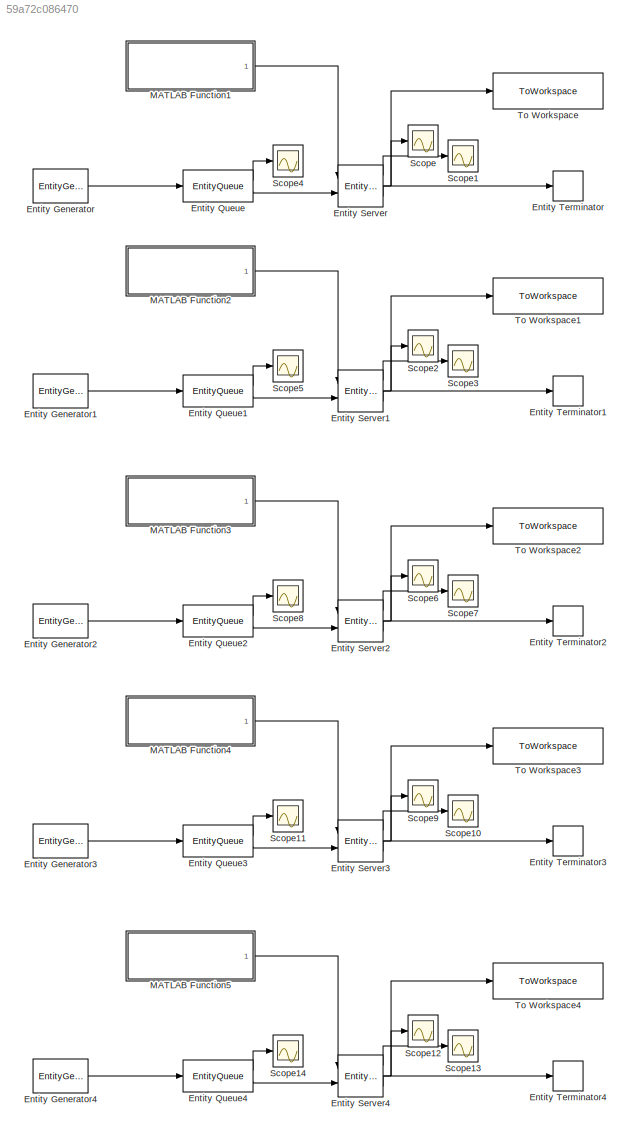
MODEL slx_59a72c086470
KIND model
CONFIG AbsTol = auto
CONFIG EnableMultiTasking = off
CONFIG FixedStep = auto
CONFIG MaxStep = auto
CONFIG MinStep = auto
CONFIG RelTol = 1e-3
CONFIG SampleTimeConstraint = Unconstrained
CONFIG Solver = VariableStepAuto
CONFIG SolverName = VariableStepAuto
CONFIG StartTime = 0.0
CONFIG StopTime = 300
BLOCK [EntityGenerator] Entity Generator
  EntityType = Structured
  EntityTypeName = Entity
  IntergenerationTimeAction = persistent counter;\nif isempty(counter)\n   counter = 1;\nend \nif counter <= 100\n    mean=2;\n    dt = -mean*log(1-rand());\nelse\n    dt = inf;\nend\ncounter = counter + 1
  OutputPortMap = o3
  OutputPortMessageModes = m
  Period = 5
  Ports = [0, 1]
  TimeSource = MATLAB action
BLOCK [EntityGenerator] Entity Generator1
  EntityType = Structured
  EntityTypeName = Entity
  IntergenerationTimeAction = persistent counter\nif isempty(counter)\n   counter = 1;\nend \nif counter <= 100\n    mean=2;\n    dt = -mean*log(1-rand());\nelse\n    dt = inf;\nend\ncounter = counter + 1  <repeated x4 — deduplicated; at blocks: Entity Generator1, Entity Generator2, Entity Generator3, Entity Generator4>
  OutputPortMap = o3
  OutputPortMessageModes = m
  Period = 5
  Ports = [0, 1]
  TimeSource = MATLAB action
BLOCK [EntityGenerator] Entity Generator2
  EntityType = Structured
  EntityTypeName = Entity
  OutputPortMap = o3
  OutputPortMessageModes = m
  Period = 5
  Ports = [0, 1]
  TimeSource = MATLAB action
BLOCK [EntityGenerator] Entity Generator3
  EntityType = Structured
  EntityTypeName = Entity
  OutputPortMap = o3
  OutputPortMessageModes = m
  Period = 5
  Ports = [0, 1]
  TimeSource = MATLAB action
BLOCK [EntityGenerator] Entity Generator4
  EntityType = Structured
  EntityTypeName = Entity
  OutputPortMap = o3
  OutputPortMessageModes = m
  Period = 5
  Ports = [0, 1]
  TimeSource = MATLAB action
BLOCK [EntityQueue] Entity Queue
  AverageWait = on
  Capacity = inf
  InputPortMap = u0
  InputPortMessageModes = m
  OutputPortMap = o2,o5
  OutputPortMessageModes = n,m
  Ports = [1, 2]
BLOCK [EntityQueue] Entity Queue1
  AverageWait = on
  Capacity = inf
  InputPortMap = u0
  InputPortMessageModes = m
  OutputPortMap = o2,o5
  OutputPortMessageModes = n,m
  Ports = [1, 2]
BLOCK [EntityQueue] Entity Queue2
  AverageWait = on
  Capacity = inf
  InputPortMap = u0
  InputPortMessageModes = m
  OutputPortMap = o2,o5
  OutputPortMessageModes = n,m
  Ports = [1, 2]
BLOCK [EntityQueue] Entity Queue3
  AverageWait = on
  Capacity = inf
  InputPortMap = u0
  InputPortMessageModes = m
  OutputPortMap = o2,o5
  OutputPortMessageModes = n,m
  Ports = [1, 2]
BLOCK [EntityQueue] Entity Queue4
  AverageWait = on
  Capacity = inf
  InputPortMap = u0
  InputPortMessageModes = m
  OutputPortMap = o2,o5
  OutputPortMessageModes = n,m
  Ports = [1, 2]
BLOCK [EntityServer] Entity Server
  AverageWait = on
  Capacity = 1
  InputPortMap = u0,u2
  InputPortMessageModes = n,m
  OutputPortMap = o4,o5,o9
  OutputPortMessageModes = n,n,m
  Ports = [2, 3]
  ServiceTimeAction = dt = getST(y);
  ServiceTimeAttributeName = Attribute1
  ServiceTimeSource = Signal port
  Utilization = on
BLOCK [EntityServer] Entity Server1
  AverageWait = on
  Capacity = 1
  InputPortMap = u0,u2
  InputPortMessageModes = n,m
  OutputPortMap = o4,o5,o9
  OutputPortMessageModes = n,n,m
  Ports = [2, 3]
  ServiceTimeAction = dt = getST(y);
  ServiceTimeAttributeName = Attribute1
  ServiceTimeSource = Signal port
  Utilization = on
BLOCK [EntityServer] Entity Server2
  AverageWait = on
  Capacity = 1
  InputPortMap = u0,u2
  InputPortMessageModes = n,m
  OutputPortMap = o4,o5,o9
  OutputPortMessageModes = n,n,m
  Ports = [2, 3]
  ServiceTimeAction = dt = getST(y);
  ServiceTimeAttributeName = Attribute1
  ServiceTimeSource = Signal port
  Utilization = on
BLOCK [EntityServer] Entity Server3
  AverageWait = on
  Capacity = 1
  InputPortMap = u0,u2
  InputPortMessageModes = n,m
  OutputPortMap = o4,o5,o9
  OutputPortMessageModes = n,n,m
  Ports = [2, 3]
  ServiceTimeAction = dt = getST(y);
  ServiceTimeAttributeName = Attribute1
  ServiceTimeSource = Signal port
  Utilization = on
BLOCK [EntityServer] Entity Server4
  AverageWait = on
  Capacity = 1
  InputPortMap = u0,u2
  InputPortMessageModes = n,m
  OutputPortMap = o4,o5,o9
  OutputPortMessageModes = n,n,m
  Ports = [2, 3]
  ServiceTimeAction = dt = getST(y);
  ServiceTimeAttributeName = Attribute1
  ServiceTimeSource = Signal port
  Utilization = on
BLOCK [EntityTerminator] Entity Terminator
  InputPortMap = u0
  InputPortMessageModes = m
  Ports = [1]
BLOCK [EntityTerminator] Entity Terminator1
  InputPortMap = u0
  InputPortMessageModes = m
  Ports = [1]
BLOCK [EntityTerminator] Entity Terminator2
  InputPortMap = u0
  InputPortMessageModes = m
  Ports = [1]
BLOCK [EntityTerminator] Entity Terminator3
  InputPortMap = u0
  InputPortMessageModes = m
  Ports = [1]
BLOCK [EntityTerminator] Entity Terminator4
  InputPortMap = u0
  InputPortMessageModes = m
  Ports = [1]
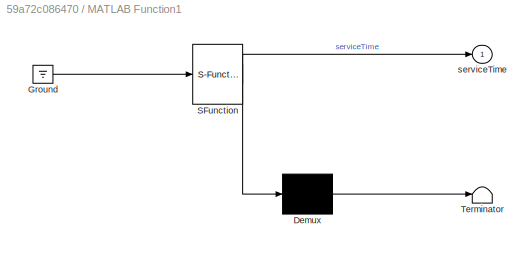
BLOCK [SubSystem] MATLAB Function1
  ErrorFcn = Stateflow.Translate.translate
  PermitHierarchicalResolution = ExplicitOnly
  Ports = [0, 1]
  RequestExecContextInheritance = off
  SFBlockType = MATLAB Function
  TreatAsAtomicUnit = on
BLOCK [Demux] MATLAB Function1/ Demux 
  Outputs = 1
  Ports = [1, 1]
BLOCK [Ground] MATLAB Function1/ Ground 
BLOCK [S-Function] MATLAB Function1/ SFunction 
  EnableBusSupport = on
  FunctionName = sf_sfun
  PortCounts = [1 2]
  Ports = [1, 2]
  SFcnIsStateOwnerBlock = off
  SFunctionDeploymentMode = off
  Tag = Stateflow S-Function P2 1
BLOCK [Terminator] MATLAB Function1/ Terminator 
BLOCK [Outport] MATLAB Function1/serviceTime
  IconDisplay = Port number
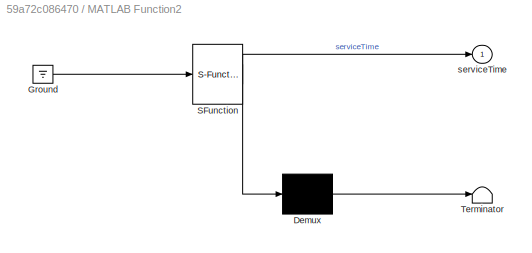
BLOCK [SubSystem] MATLAB Function2
  ErrorFcn = Stateflow.Translate.translate
  PermitHierarchicalResolution = ExplicitOnly
  Ports = [0, 1]
  RequestExecContextInheritance = off
  SFBlockType = MATLAB Function
  TreatAsAtomicUnit = on
BLOCK [Demux] MATLAB Function2/ Demux 
  Outputs = 1
  Ports = [1, 1]
BLOCK [Ground] MATLAB Function2/ Ground 
BLOCK [S-Function] MATLAB Function2/ SFunction 
  EnableBusSupport = on
  FunctionName = sf_sfun
  PortCounts = [1 2]
  Ports = [1, 2]
  SFcnIsStateOwnerBlock = off
  SFunctionDeploymentMode = off
  Tag = Stateflow S-Function P2 2
BLOCK [Terminator] MATLAB Function2/ Terminator 
BLOCK [Outport] MATLAB Function2/serviceTime
  IconDisplay = Port number
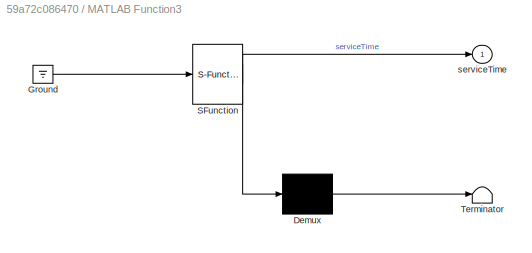
BLOCK [SubSystem] MATLAB Function3
  ErrorFcn = Stateflow.Translate.translate
  PermitHierarchicalResolution = ExplicitOnly
  Ports = [0, 1]
  RequestExecContextInheritance = off
  SFBlockType = MATLAB Function
  TreatAsAtomicUnit = on
BLOCK [Demux] MATLAB Function3/ Demux 
  Outputs = 1
  Ports = [1, 1]
BLOCK [Ground] MATLAB Function3/ Ground 
BLOCK [S-Function] MATLAB Function3/ SFunction 
  EnableBusSupport = on
  FunctionName = sf_sfun
  PortCounts = [1 2]
  Ports = [1, 2]
  SFcnIsStateOwnerBlock = off
  SFunctionDeploymentMode = off
  Tag = Stateflow S-Function P2 3
BLOCK [Terminator] MATLAB Function3/ Terminator 
BLOCK [Outport] MATLAB Function3/serviceTime
  IconDisplay = Port number
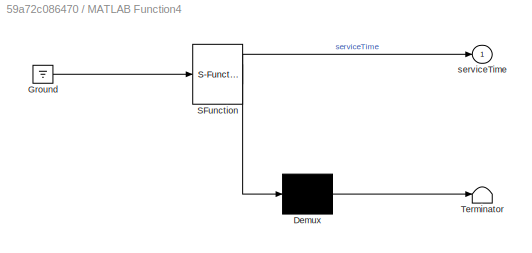
BLOCK [SubSystem] MATLAB Function4
  ErrorFcn = Stateflow.Translate.translate
  PermitHierarchicalResolution = ExplicitOnly
  Ports = [0, 1]
  RequestExecContextInheritance = off
  SFBlockType = MATLAB Function
  TreatAsAtomicUnit = on
BLOCK [Demux] MATLAB Function4/ Demux 
  Outputs = 1
  Ports = [1, 1]
BLOCK [Ground] MATLAB Function4/ Ground 
BLOCK [S-Function] MATLAB Function4/ SFunction 
  EnableBusSupport = on
  FunctionName = sf_sfun
  PortCounts = [1 2]
  Ports = [1, 2]
  SFcnIsStateOwnerBlock = off
  SFunctionDeploymentMode = off
  Tag = Stateflow S-Function P2 4
BLOCK [Terminator] MATLAB Function4/ Terminator 
BLOCK [Outport] MATLAB Function4/serviceTime
  IconDisplay = Port number
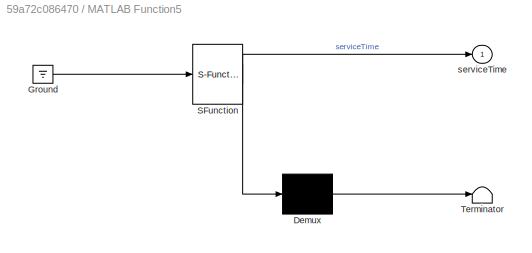
BLOCK [SubSystem] MATLAB Function5
  ErrorFcn = Stateflow.Translate.translate
  PermitHierarchicalResolution = ExplicitOnly
  Ports = [0, 1]
  RequestExecContextInheritance = off
  SFBlockType = MATLAB Function
  TreatAsAtomicUnit = on
BLOCK [Demux] MATLAB Function5/ Demux 
  Outputs = 1
  Ports = [1, 1]
BLOCK [Ground] MATLAB Function5/ Ground 
BLOCK [S-Function] MATLAB Function5/ SFunction 
  EnableBusSupport = on
  FunctionName = sf_sfun
  PortCounts = [1 2]
  Ports = [1, 2]
  SFcnIsStateOwnerBlock = off
  SFunctionDeploymentMode = off
  Tag = Stateflow S-Function P2 5
BLOCK [Terminator] MATLAB Function5/ Terminator 
BLOCK [Outport] MATLAB Function5/serviceTime
  IconDisplay = Port number
BLOCK [Scope] Scope
  Floating = off
  NumInputPorts = 1
  Ports = [1]
  ScopeSpecificationString = Simulink.scopes.TimeScopeBlockCfg('CurrentConfiguration', extmgr.ConfigurationSet(extmgr.Configuration('Core','General UI',true),extmgr.Configuration('Core','Source UI',true),extmgr.Configuration('Sources','WiredSimulink',true),extmgr.Configuration('Visuals','Time Domain',true,'SerializedDisplays',{struct('MinYLimReal','0.69612','MaxYLimReal','1.03376','YLabelReal','','MinYLimMag','0.69612','MaxYL...<+1362ch>
BLOCK [Scope] Scope1
  Floating = off
  NumInputPorts = 1
  Ports = [1]
  ScopeSpecificationString = Simulink.scopes.TimeScopeBlockCfg('CurrentConfiguration', extmgr.ConfigurationSet(extmgr.Configuration('Core','General UI',true),extmgr.Configuration('Core','Source UI',true),extmgr.Configuration('Sources','WiredSimulink',true,'DataLoggingVariableName','ScopeData1'),extmgr.Configuration('Visuals','Time Domain',true,'SerializedDisplays',{struct('MinYLimReal','2.89475','MaxYLimReal','3.10207','YLabe...<+1372ch>
BLOCK [Scope] Scope10
  Floating = off
  NumInputPorts = 1
  Ports = [1]
  ScopeSpecificationString = Simulink.scopes.TimeScopeBlockCfg('CurrentConfiguration', extmgr.ConfigurationSet(extmgr.Configuration('Core','General UI',true),extmgr.Configuration('Core','Source UI',true),extmgr.Configuration('Sources','WiredSimulink',true,'DataLoggingVariableName','ScopeData8'),extmgr.Configuration('Visuals','Time Domain',true,'SerializedDisplays',{struct('MinYLimReal','1.6859069811316809','MaxYLimReal','1.68...<+1460ch>
BLOCK [Scope] Scope11
  Floating = off
  NumInputPorts = 1
  Ports = [1]
  ScopeSpecificationString = Simulink.scopes.TimeScopeBlockCfg('CurrentConfiguration', extmgr.ConfigurationSet(extmgr.Configuration('Core','General UI',true),extmgr.Configuration('Core','Source UI',true),extmgr.Configuration('Sources','WiredSimulink',true,'DataLoggingVariableName','ScopeData9'),extmgr.Configuration('Visuals','Time Domain',true,'SerializedDisplays',{struct('MinYLimReal','-0.28539','MaxYLimReal','2.56847','YLab...<+1402ch>
BLOCK [Scope] Scope12
  Floating = off
  NumInputPorts = 1
  Ports = [1]
  ScopeSpecificationString = Simulink.scopes.TimeScopeBlockCfg('CurrentConfiguration', extmgr.ConfigurationSet(extmgr.Configuration('Core','General UI',true),extmgr.Configuration('Core','Source UI',true),extmgr.Configuration('Sources','WiredSimulink',true,'DataLoggingVariableName','ScopeData11'),extmgr.Configuration('Visuals','Time Domain',true,'SerializedDisplays',{struct('MinYLimReal','0.34352','MaxYLimReal','1.07294','YLab...<+1402ch>
BLOCK [Scope] Scope13
  Floating = off
  NumInputPorts = 1
  Ports = [1]
  ScopeSpecificationString = Simulink.scopes.TimeScopeBlockCfg('CurrentConfiguration', extmgr.ConfigurationSet(extmgr.Configuration('Core','General UI',true),extmgr.Configuration('Core','Source UI',true),extmgr.Configuration('Sources','WiredSimulink',true,'DataLoggingVariableName','ScopeData12'),extmgr.Configuration('Visuals','Time Domain',true,'SerializedDisplays',{struct('MinYLimReal','1.6859069811316809','MaxYLimReal','1.6...<+1461ch>
BLOCK [Scope] Scope14
  Floating = off
  NumInputPorts = 1
  Ports = [1]
  ScopeSpecificationString = Simulink.scopes.TimeScopeBlockCfg('CurrentConfiguration', extmgr.ConfigurationSet(extmgr.Configuration('Core','General UI',true),extmgr.Configuration('Core','Source UI',true),extmgr.Configuration('Sources','WiredSimulink',true,'DataLoggingVariableName','ScopeData13'),extmgr.Configuration('Visuals','Time Domain',true,'SerializedDisplays',{struct('MinYLimReal','-0.28539','MaxYLimReal','2.56847','YLa...<+1403ch>
BLOCK [Scope] Scope2
  Floating = off
  NumInputPorts = 1
  Ports = [1]
  ScopeSpecificationString = Simulink.scopes.TimeScopeBlockCfg('CurrentConfiguration', extmgr.ConfigurationSet(extmgr.Configuration('Core','General UI',true),extmgr.Configuration('Core','Source UI',true),extmgr.Configuration('Sources','WiredSimulink',true,'DataLoggingVariableName','ScopeData1'),extmgr.Configuration('Visuals','Time Domain',true,'SerializedDisplays',{struct('MinYLimReal','0.34352','MaxYLimReal','1.07294','YLabe...<+1401ch>
BLOCK [Scope] Scope3
  Floating = off
  NumInputPorts = 1
  Ports = [1]
  ScopeSpecificationString = Simulink.scopes.TimeScopeBlockCfg('CurrentConfiguration', extmgr.ConfigurationSet(extmgr.Configuration('Core','General UI',true),extmgr.Configuration('Core','Source UI',true),extmgr.Configuration('Sources','WiredSimulink',true,'DataLoggingVariableName','ScopeData2'),extmgr.Configuration('Visuals','Time Domain',true,'SerializedDisplays',{struct('MinYLimReal','1.6859069811316809','MaxYLimReal','1.68...<+1460ch>
BLOCK [Scope] Scope4
  Floating = off
  NumInputPorts = 1
  Ports = [1]
  ScopeSpecificationString = Simulink.scopes.TimeScopeBlockCfg('CurrentConfiguration', extmgr.ConfigurationSet(extmgr.Configuration('Core','General UI',true),extmgr.Configuration('Core','Source UI',true),extmgr.Configuration('Sources','WiredSimulink',true,'DataLoggingVariableName','ScopeData3'),extmgr.Configuration('Visuals','Time Domain',true,'SerializedDisplays',{struct('MinYLimReal','-4.28885','MaxYLimReal','38.59962','YLa...<+1406ch>
BLOCK [Scope] Scope5
  Floating = off
  NumInputPorts = 1
  Ports = [1]
  ScopeSpecificationString = Simulink.scopes.TimeScopeBlockCfg('CurrentConfiguration', extmgr.ConfigurationSet(extmgr.Configuration('Core','General UI',true),extmgr.Configuration('Core','Source UI',true),extmgr.Configuration('Sources','WiredSimulink',true,'DataLoggingVariableName','ScopeData4'),extmgr.Configuration('Visuals','Time Domain',true,'SerializedDisplays',{struct('MinYLimReal','-0.28539','MaxYLimReal','2.56847','YLab...<+1402ch>
BLOCK [Scope] Scope6
  Floating = off
  NumInputPorts = 1
  Ports = [1]
  ScopeSpecificationString = Simulink.scopes.TimeScopeBlockCfg('CurrentConfiguration', extmgr.ConfigurationSet(extmgr.Configuration('Core','General UI',true),extmgr.Configuration('Core','Source UI',true),extmgr.Configuration('Sources','WiredSimulink',true,'DataLoggingVariableName','ScopeData5'),extmgr.Configuration('Visuals','Time Domain',true,'SerializedDisplays',{struct('MinYLimReal','0.34352','MaxYLimReal','1.07294','YLabe...<+1401ch>
BLOCK [Scope] Scope7
  Floating = off
  NumInputPorts = 1
  Ports = [1]
  ScopeSpecificationString = Simulink.scopes.TimeScopeBlockCfg('CurrentConfiguration', extmgr.ConfigurationSet(extmgr.Configuration('Core','General UI',true),extmgr.Configuration('Core','Source UI',true),extmgr.Configuration('Sources','WiredSimulink',true,'DataLoggingVariableName','ScopeData6'),extmgr.Configuration('Visuals','Time Domain',true,'SerializedDisplays',{struct('MinYLimReal','1.6859069811316809','MaxYLimReal','1.68...<+1460ch>
BLOCK [Scope] Scope8
  Floating = off
  NumInputPorts = 1
  Ports = [1]
  ScopeSpecificationString = Simulink.scopes.TimeScopeBlockCfg('CurrentConfiguration', extmgr.ConfigurationSet(extmgr.Configuration('Core','General UI',true),extmgr.Configuration('Core','Source UI',true),extmgr.Configuration('Sources','WiredSimulink',true,'DataLoggingVariableName','ScopeData7'),extmgr.Configuration('Visuals','Time Domain',true,'SerializedDisplays',{struct('MinYLimReal','-0.28539','MaxYLimReal','2.56847','YLab...<+1402ch>
BLOCK [Scope] Scope9
  Floating = off
  NumInputPorts = 1
  Ports = [1]
  ScopeSpecificationString = Simulink.scopes.TimeScopeBlockCfg('CurrentConfiguration', extmgr.ConfigurationSet(extmgr.Configuration('Core','General UI',true),extmgr.Configuration('Core','Source UI',true),extmgr.Configuration('Sources','WiredSimulink',true,'DataLoggingVariableName','ScopeData10'),extmgr.Configuration('Visuals','Time Domain',true,'SerializedDisplays',{struct('MinYLimReal','0.34352','MaxYLimReal','1.07294','YLab...<+1402ch>
BLOCK [ToWorkspace] To Workspace
  FixptAsFi = on
  MaxDataPoints = inf
  Ports = [1]
  SampleTime = -1
  Save2DSignal = 3-D array (concatenate along third dimension)
  SaveFormat = Timeseries
  VariableName = utilizationSimulated1
BLOCK [ToWorkspace] To Workspace1
  FixptAsFi = on
  MaxDataPoints = inf
  Ports = [1]
  SampleTime = -1
  Save2DSignal = 3-D array (concatenate along third dimension)
  SaveFormat = Timeseries
  VariableName = utilizationSimulated2
BLOCK [ToWorkspace] To Workspace2
  FixptAsFi = on
  MaxDataPoints = inf
  Ports = [1]
  SampleTime = -1
  Save2DSignal = 3-D array (concatenate along third dimension)
  SaveFormat = Timeseries
  VariableName = utilizationSimulated3
BLOCK [ToWorkspace] To Workspace3
  FixptAsFi = on
  MaxDataPoints = inf
  Ports = [1]
  SampleTime = -1
  Save2DSignal = 3-D array (concatenate along third dimension)
  SaveFormat = Timeseries
  VariableName = utilizationSimulated4
BLOCK [ToWorkspace] To Workspace4
  FixptAsFi = on
  MaxDataPoints = inf
  Ports = [1]
  SampleTime = -1
  Save2DSignal = 3-D array (concatenate along third dimension)
  SaveFormat = Timeseries
  VariableName = utilizationSimulated5
LINE Entity Generator1:1 -> Entity Queue1:1
LINE Entity Generator2:1 -> Entity Queue2:1
LINE Entity Generator3:1 -> Entity Queue3:1
LINE Entity Generator4:1 -> Entity Queue4:1
LINE Entity Generator:1 -> Entity Queue:1
LINE Entity Queue1:1 -> Scope5:1
LINE Entity Queue1:2 -> Entity Server1:2
LINE Entity Queue2:1 -> Scope8:1
LINE Entity Queue2:2 -> Entity Server2:2
LINE Entity Queue3:1 -> Scope11:1
LINE Entity Queue3:2 -> Entity Server3:2
LINE Entity Queue4:1 -> Scope14:1
LINE Entity Queue4:2 -> Entity Server4:2
LINE Entity Queue:1 -> Scope4:1
LINE Entity Queue:2 -> Entity Server:2
LINE Entity Server1:1 -> Scope3:1
NET Entity Server1:2 -> Scope2:1, To Workspace1:1
LINE Entity Server1:3 -> Entity Terminator1:1
LINE Entity Server2:1 -> Scope7:1
NET Entity Server2:2 -> Scope6:1, To Workspace2:1
LINE Entity Server2:3 -> Entity Terminator2:1
LINE Entity Server3:1 -> Scope10:1
NET Entity Server3:2 -> Scope9:1, To Workspace3:1
LINE Entity Server3:3 -> Entity Terminator3:1
LINE Entity Server4:1 -> Scope13:1
NET Entity Server4:2 -> Scope12:1, To Workspace4:1
LINE Entity Server4:3 -> Entity Terminator4:1
LINE Entity Server:1 -> Scope1:1
NET Entity Server:2 -> Scope:1, To Workspace:1
LINE Entity Server:3 -> Entity Terminator:1
LINE MATLAB Function1:1 -> Entity Server:1
LINE MATLAB Function2:1 -> Entity Server1:1
LINE MATLAB Function3:1 -> Entity Server2:1
LINE MATLAB Function4:1 -> Entity Server3:1
LINE MATLAB Function5:1 -> Entity Server4:1
note: NET lines group one-source signal fan-out (src -> all destinations, sorted); 1:1 wires keep LINE
CHART MATLAB Function1 states=1 transitions=1
  STATE_LABEL 'eML_blk_kernel()'
  STATE_LABEL 'SCRIPT:\nfunction serviceTime = serviceTimeFunction()\n    persistent counter\n    if isempty(counter)\n        counter = 1;\n        rng(11)\n    end \n    mu = 3;\n    sigma = 0.2;\n    serviceTime = normrnd(mu,sigma);\n    \n'
CHART MATLAB Function2 states=1 transitions=1
  STATE_LABEL 'eML_blk_kernel()'
  STATE_LABEL 'SCRIPT:\nfunction serviceTime = serviceTimeFunction()\n    persistent counter\n    if isempty(counter)\n        counter = 1;\n        rng(19)\n    end \n    mu = 3;\n    sigma = 0.2;\n    serviceTime = normrnd(mu,sigma);\n    \n'
CHART MATLAB Function3 states=1 transitions=1
  STATE_LABEL 'eML_blk_kernel()'
  STATE_LABEL 'SCRIPT:\nfunction serviceTime = serviceTimeFunction()\n    persistent counter\n    if isempty(counter)\n        counter = 1;\n        rng(23)\n    end \n    mu = 3;\n    sigma = 0.2;\n    serviceTime = normrnd(mu,sigma);\n    \n'
CHART MATLAB Function4 states=1 transitions=1
  STATE_LABEL 'eML_blk_kernel()'
  STATE_LABEL 'SCRIPT:\nfunction serviceTime = serviceTimeFunction()\n    persistent counter\n    if isempty(counter)\n        counter = 1;\n        rng(29)\n    end \n    mu = 3;\n    sigma = 0.2;\n    serviceTime = normrnd(mu,sigma);\n    \n'
CHART MATLAB Function5 states=1 transitions=1
  STATE_LABEL 'eML_blk_kernel()'
  STATE_LABEL 'SCRIPT:\nfunction serviceTime = serviceTimeFunction()\n    persistent counter\n    if isempty(counter)\n        counter = 1;\n        rng(31)\n    end \n    mu = 3;\n    sigma = 0.2;\n    serviceTime = normrnd(mu,sigma);\n    \n'
